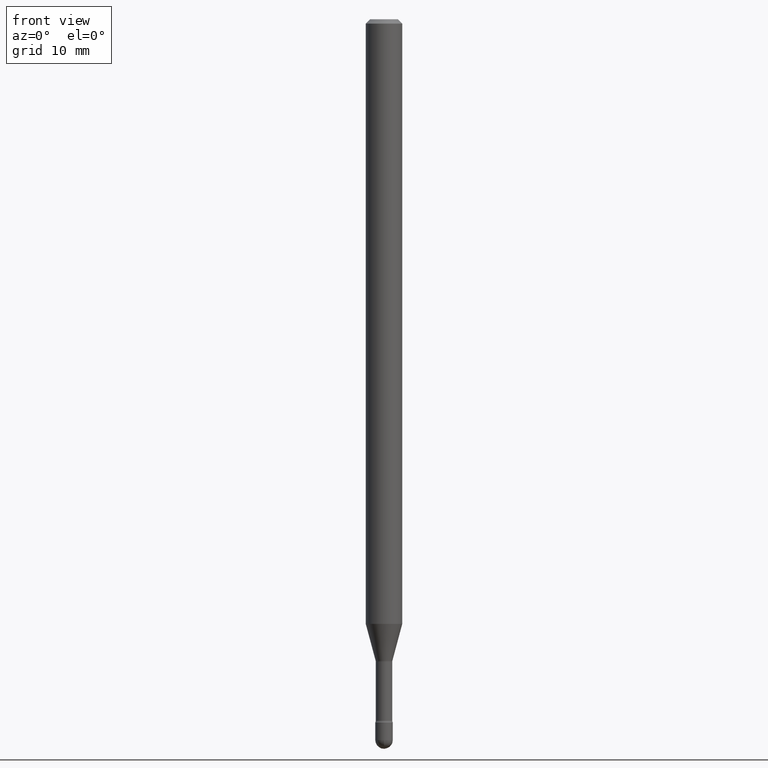
[diagram: clean part render]
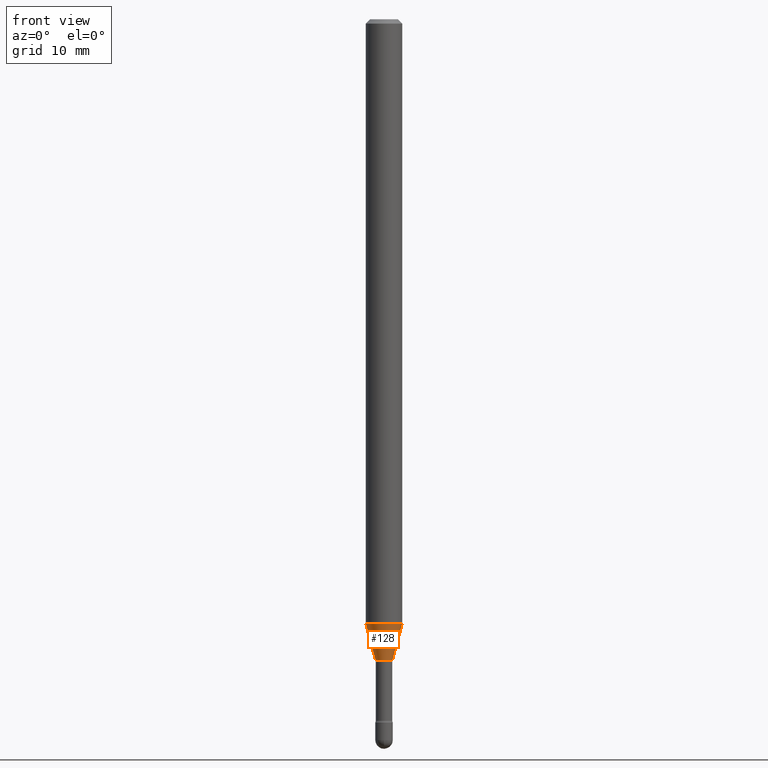
[diagram: same view with one face highlighted and labeled with its STEP entity id]
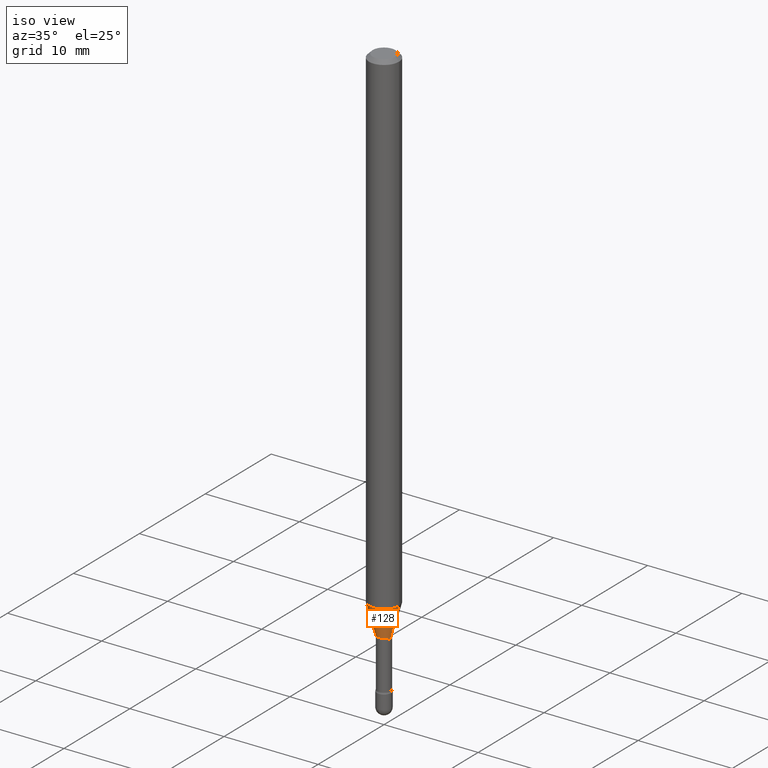
[diagram: same view with one face highlighted and labeled with its STEP entity id]
A machine part, front view. The second image highlights one B-rep face of the part: STEP entity #128.
A second angle (iso view) of the same face is appended — the face is thin or edge-on in the first view.
In plain terms, the highlighted conical surface has half-angle 15 deg.
Its self-contained STEP definition (entity closure, byte-faithful):
#3 = CONICAL_SURFACE ( 'NONE', #25, 0.02871111260566398468, 0.2617993877991500740 ) ;
#16 = LINE ( 'NONE', #101, #284 ) ;
#19 = VERTEX_POINT ( 'NONE', #414 ) ;
#20 = DIRECTION ( 'NONE',  ( -2.445468806185136597E-29, 3.491481338843145583E-15, 1.000000000000000000 ) ) ;
#25 = AXIS2_PLACEMENT_3D ( 'NONE', #122, #434, #262 ) ;
#28 = EDGE_CURVE ( 'NONE', #59, #19, #385, .T. ) ;
#59 = VERTEX_POINT ( 'NONE', #547 ) ;
#70 = DIRECTION ( 'NONE',  ( -2.445468806185136597E-29, 3.491481338843145583E-15, 1.000000000000000000 ) ) ;
#101 = CARTESIAN_POINT ( 'NONE',  ( -0.02871111260566398468, -7.470594226065859749E-15, -2.198092501787273001 ) ) ;
#122 = CARTESIAN_POINT ( 'NONE',  ( 5.375366646230222807E-29, -7.674598951041308129E-15, -2.198092501787273001 ) ) ;
#128 = ADVANCED_FACE ( 'NONE', ( #347 ), #3, .T. ) ;
#144 = VERTEX_POINT ( 'NONE', #219 ) ;
#158 = DIRECTION ( 'NONE',  ( 1.000000000000000000, -6.982962677686262766E-15, 0.000000000000000000 ) ) ;
#175 = LINE ( 'NONE', #389, #418 ) ;
#219 = CARTESIAN_POINT ( 'NONE',  ( -0.02871111260566398468, -7.130410865218722411E-15, -2.198092501787273001 ) ) ;
#235 = ORIENTED_EDGE ( 'NONE', *, *, #399, .F. ) ;
#241 = ORIENTED_EDGE ( 'NONE', *, *, #438, .T. ) ;
#262 = DIRECTION ( 'NONE',  ( 1.000000000000000000, -6.982962677686277755E-15, 0.000000000000000000 ) ) ;
#269 = EDGE_LOOP ( 'NONE', ( #235, #241, #319, #492 ) ) ;
#284 = VECTOR ( 'NONE', #420, 39.37007874015747433 ) ;
#289 = CARTESIAN_POINT ( 'NONE',  ( 5.066988519135135927E-29, -7.234316714221647689E-15, -2.071990657300387895 ) ) ;
#319 = ORIENTED_EDGE ( 'NONE', *, *, #555, .T. ) ;
#344 = DIRECTION ( 'NONE',  ( 0.2588190451025213501, 1.565188264969621968E-15, 0.9659258262890682012 ) ) ;
#347 = FACE_OUTER_BOUND ( 'NONE', #269, .T. ) ;
#372 = CARTESIAN_POINT ( 'NONE',  ( 0.02871111260566398468, -7.875087578801506878E-15, -2.198092501787273001 ) ) ;
#385 = CIRCLE ( 'NONE', #450, 0.06250000000000000000 ) ;
#389 = CARTESIAN_POINT ( 'NONE',  ( 0.02871111260566398468, -7.875087578801506878E-15, -2.198092501787273001 ) ) ;
#399 = EDGE_CURVE ( 'NONE', #144, #59, #16, .T. ) ;
#414 = CARTESIAN_POINT ( 'NONE',  ( 0.06250000000000001388, -7.670751881577039359E-15, -2.071990657300387895 ) ) ;
#418 = VECTOR ( 'NONE', #344, 39.37007874015747433 ) ;
#420 = DIRECTION ( 'NONE',  ( -0.2588190451025213501, 5.211531920934551042E-15, 0.9659258262890682012 ) ) ;
#434 = DIRECTION ( 'NONE',  ( -2.445468806185136597E-29, 3.491481338843145583E-15, 1.000000000000000000 ) ) ;
#438 = EDGE_CURVE ( 'NONE', #144, #455, #478, .T. ) ;
#450 = AXIS2_PLACEMENT_3D ( 'NONE', #289, #70, #158 ) ;
#455 = VERTEX_POINT ( 'NONE', #372 ) ;
#456 = CARTESIAN_POINT ( 'NONE',  ( 5.375366646230222807E-29, -7.674598951041308129E-15, -2.198092501787273001 ) ) ;
#478 = CIRCLE ( 'NONE', #487, 0.02871111260566398468 ) ;
#487 = AXIS2_PLACEMENT_3D ( 'NONE', #456, #20, #549 ) ;
#492 = ORIENTED_EDGE ( 'NONE', *, *, #28, .F. ) ;
#547 = CARTESIAN_POINT ( 'NONE',  ( -0.06250000000000001388, -6.790227504371585073E-15, -2.071990657300387895 ) ) ;
#549 = DIRECTION ( 'NONE',  ( 1.000000000000000000, -6.982962677686277755E-15, 0.000000000000000000 ) ) ;
#555 = EDGE_CURVE ( 'NONE', #455, #19, #175, .T. ) ;